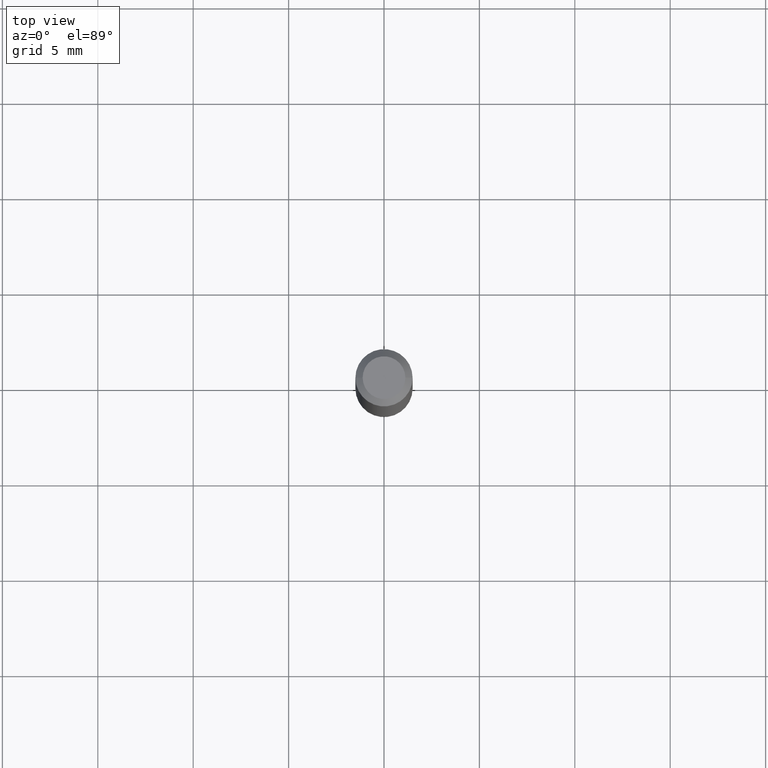
[diagram: clean part render]
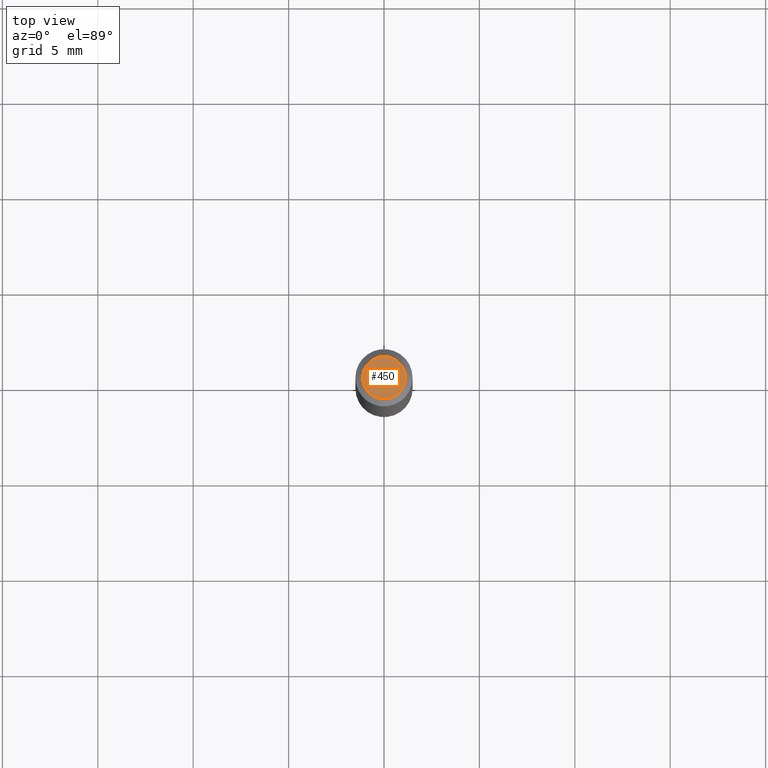
[diagram: same view with one face highlighted and labeled with its STEP entity id]
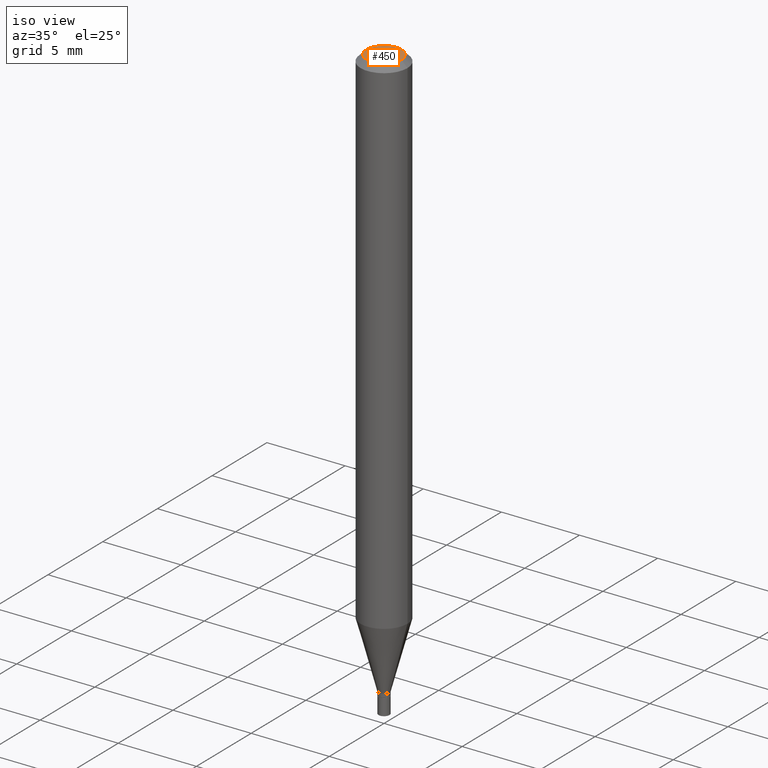
[diagram: same view with one face highlighted and labeled with its STEP entity id]
A machine part, top view. The second image highlights one B-rep face of the part: STEP entity #450.
A second angle (iso view) of the same face is appended — the face is thin or edge-on in the first view.
In plain terms, the highlighted planar face has unit normal (0, -0, -1).
Its self-contained STEP definition (entity closure, byte-faithful):
#24 = CARTESIAN_POINT ( 'NONE',  ( 3.075995059520799729E-16, 0.04404999999999999888, -9.915041236764475073E-17 ) ) ;
#66 = DIRECTION ( 'NONE',  ( 2.438088387897960049E-29, -3.491481338843145188E-15, -1.000000000000000000 ) ) ;
#70 = AXIS2_PLACEMENT_3D ( 'NONE', #24, #66, #246 ) ;
#80 = DIRECTION ( 'NONE',  ( 1.000000000000000000, -6.982962677686265922E-15, 4.888540261209747396E-29 ) ) ;
#81 = ORIENTED_EDGE ( 'NONE', *, *, #237, .T. ) ;
#97 = PLANE ( 'NONE',  #70 ) ;
#138 = FACE_OUTER_BOUND ( 'NONE', #174, .T. ) ;
#154 = DIRECTION ( 'NONE',  ( -2.445468806185136597E-29, 3.491481338843145583E-15, 1.000000000000000000 ) ) ;
#174 = EDGE_LOOP ( 'NONE', ( #465, #81 ) ) ;
#212 = CARTESIAN_POINT ( 'NONE',  ( -2.672865154728371978E-45, 3.816143058285937292E-31, 1.092986812167916054E-16 ) ) ;
#219 = AXIS2_PLACEMENT_3D ( 'NONE', #369, #154, #385 ) ;
#227 = EDGE_CURVE ( 'NONE', #310, #463, #263, .T. ) ;
#236 = CARTESIAN_POINT ( 'NONE',  ( 0.04404999999999999888, -3.798447818264458600E-16, 1.092986812167939966E-16 ) ) ;
#237 = EDGE_CURVE ( 'NONE', #463, #310, #244, .T. ) ;
#244 = CIRCLE ( 'NONE', #338, 0.04404999999999999888 ) ;
#246 = DIRECTION ( 'NONE',  ( -1.000000000000000000, 6.982962677686265922E-15, -4.876176775795935793E-29 ) ) ;
#263 = CIRCLE ( 'NONE', #219, 0.04404999999999999888 ) ;
#275 = DIRECTION ( 'NONE',  ( -2.445468806185136597E-29, 3.491481338843145583E-15, 1.000000000000000000 ) ) ;
#310 = VERTEX_POINT ( 'NONE', #427 ) ;
#338 = AXIS2_PLACEMENT_3D ( 'NONE', #212, #275, #80 ) ;
#369 = CARTESIAN_POINT ( 'NONE',  ( -2.672865154728371978E-45, 3.816143058285937292E-31, 1.092986812167916054E-16 ) ) ;
#385 = DIRECTION ( 'NONE',  ( 1.000000000000000000, -6.982962677686265922E-15, 4.888540261209747396E-29 ) ) ;
#427 = CARTESIAN_POINT ( 'NONE',  ( -0.04404999999999999888, 3.337856159934036604E-16, 1.092986812167893621E-16 ) ) ;
#450 = ADVANCED_FACE ( 'NONE', ( #138 ), #97, .F. ) ;
#463 = VERTEX_POINT ( 'NONE', #236 ) ;
#465 = ORIENTED_EDGE ( 'NONE', *, *, #227, .T. ) ;